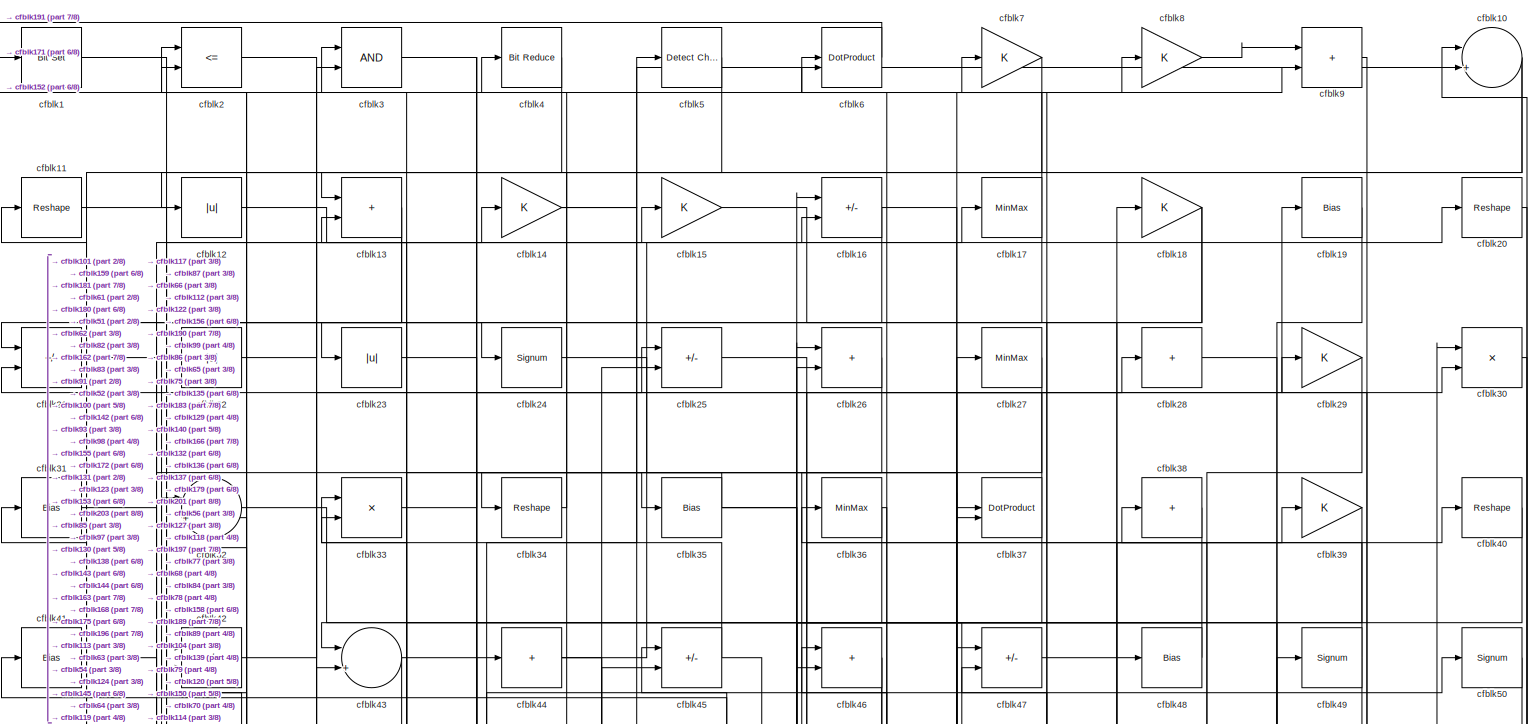
[diagram: root canvas - part 1/8, full width, top band]
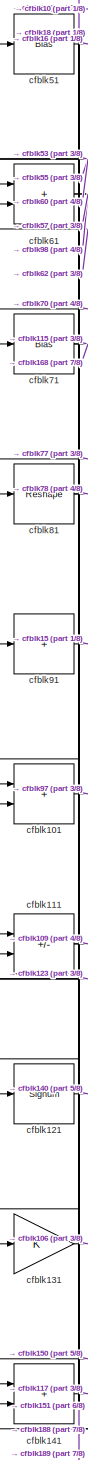
[diagram: root canvas - part 2/8, middle left region]
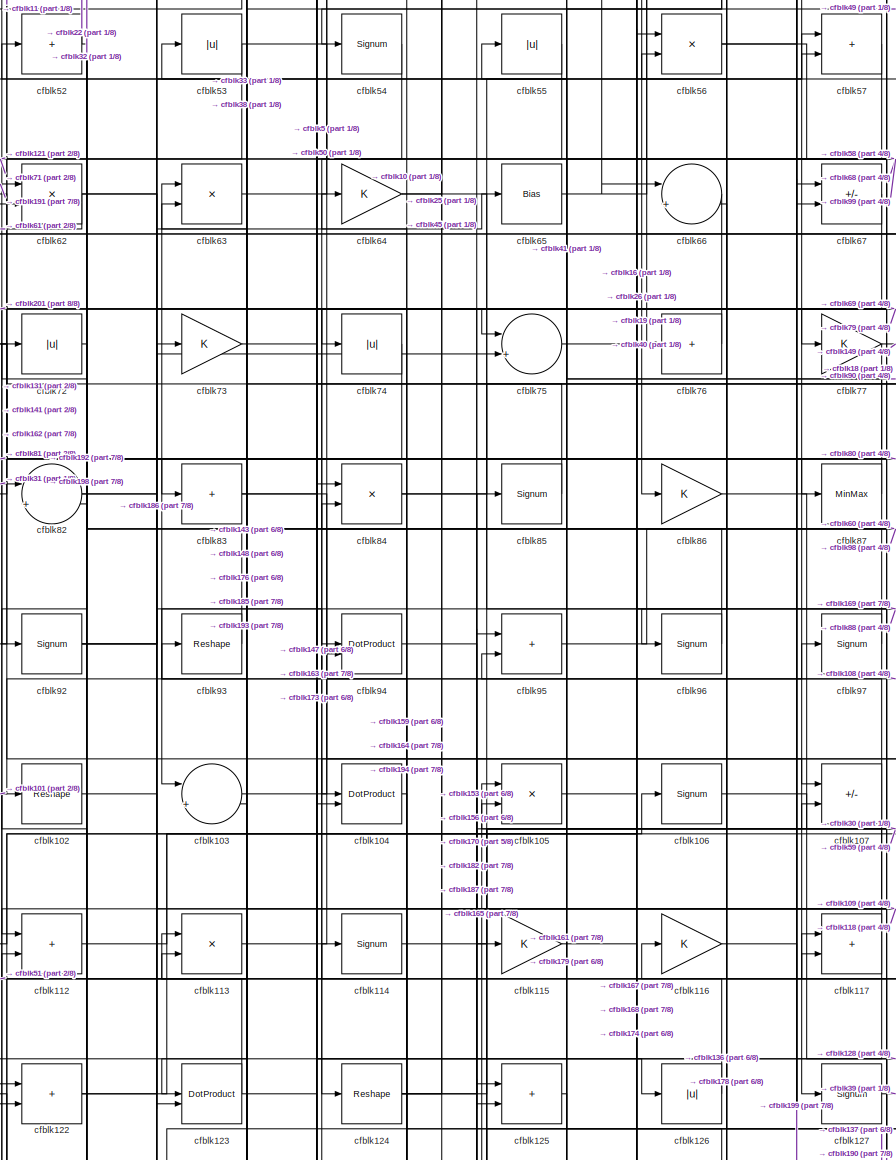
[diagram: root canvas - part 3/8, central region]
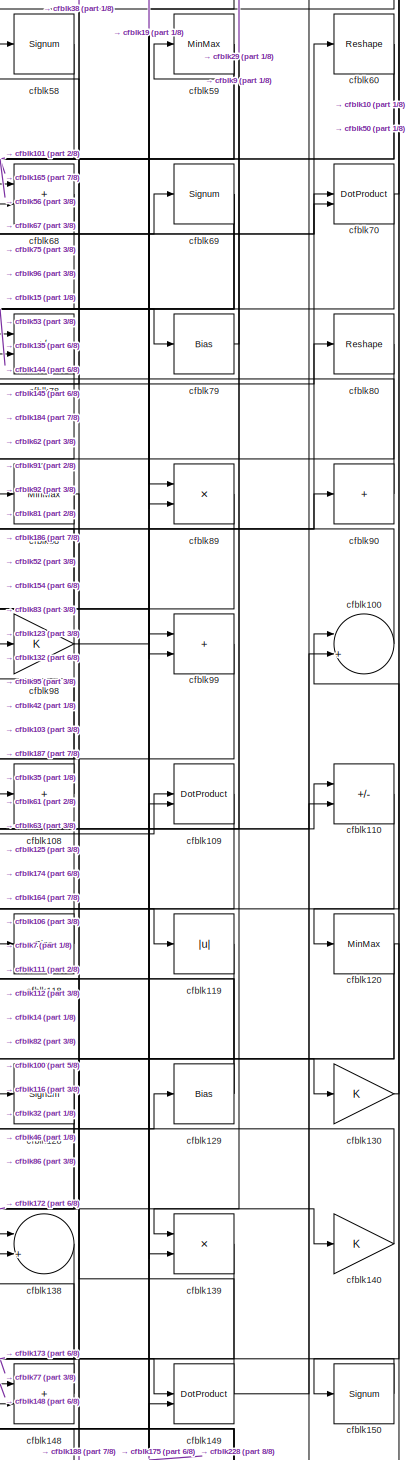
[diagram: root canvas - part 4/8, middle right region]
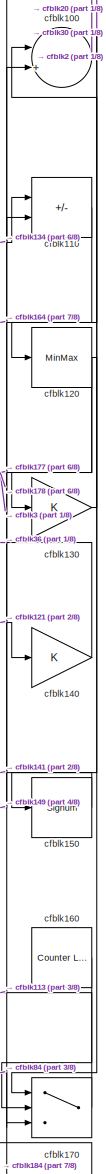
[diagram: root canvas - part 5/8, middle right region]
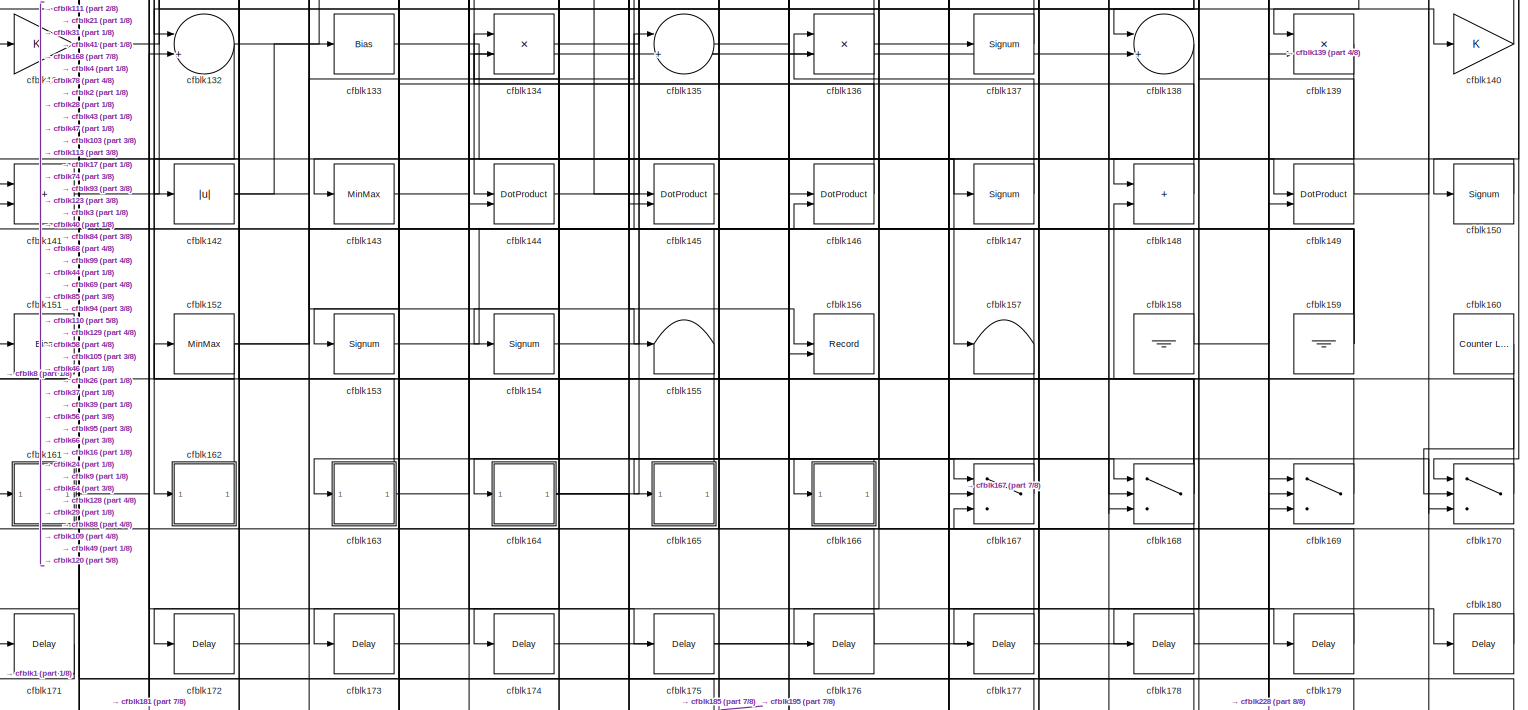
[diagram: root canvas - part 6/8, full width, bottom band]
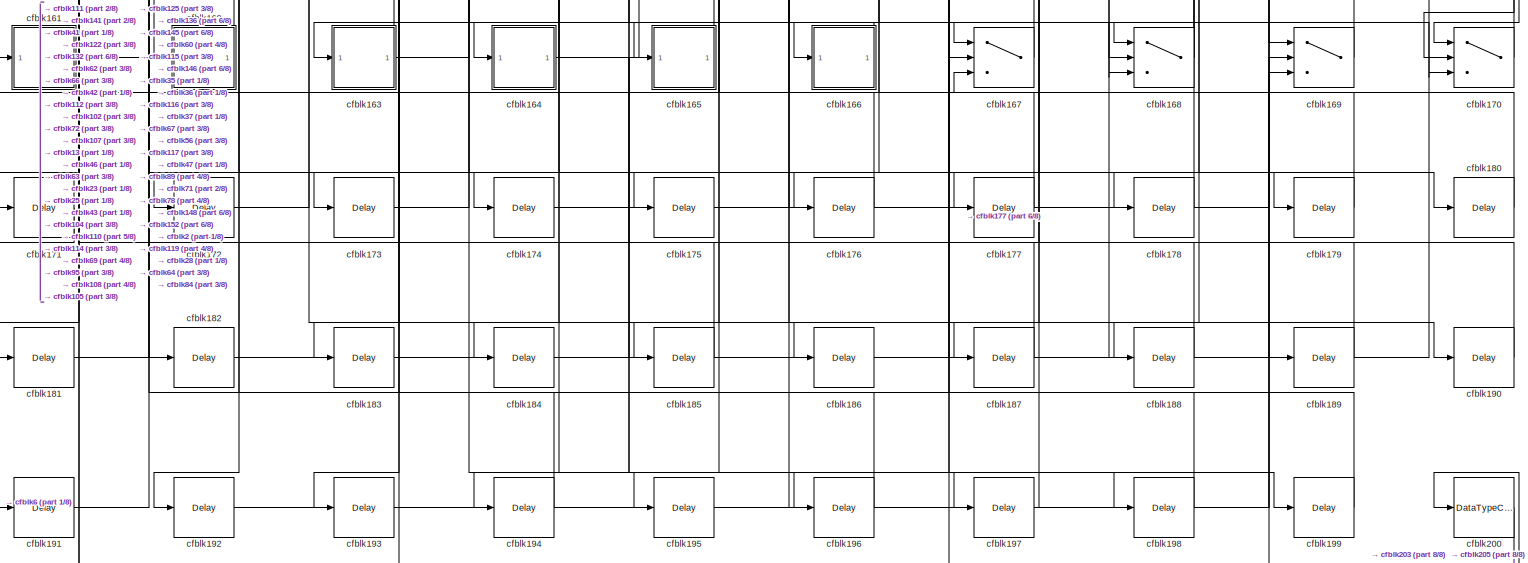
[diagram: root canvas - part 7/8, full width, bottom band]
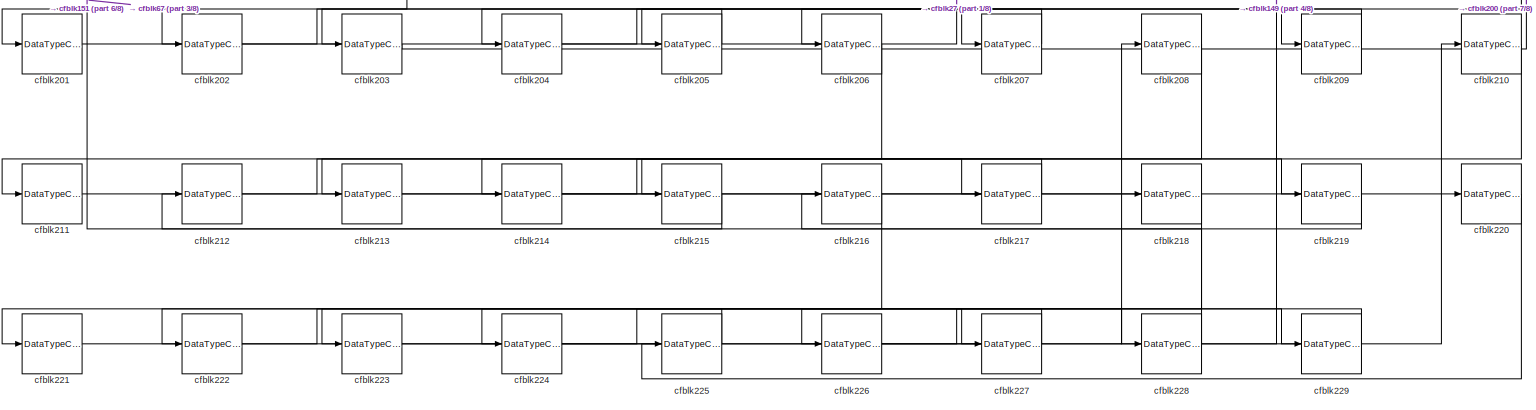
[diagram: root canvas - part 8/8, full width, bottom band]
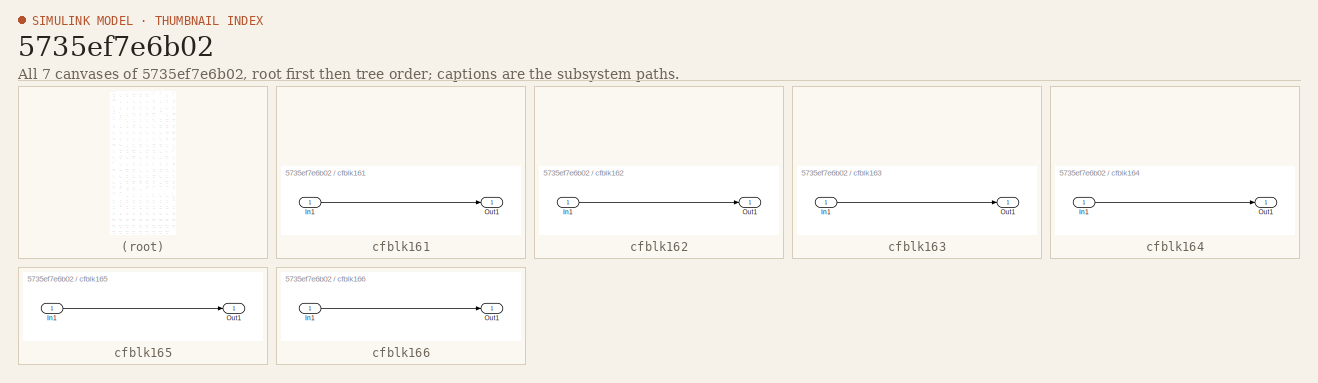
[diagram: thumbnail index - all 7 canvases of the model, root first then tree order]
MODEL slx_5735ef7e6b02
KIND model
CONFIG AbsTol = auto
CONFIG EnableMultiTasking = off
CONFIG FixedStep = auto
CONFIG MaxStep = auto
CONFIG MinStep = auto
CONFIG RelTol = 1e-3
CONFIG SampleTimeConstraint = Unconstrained
CONFIG SolverName = VariableStepAuto
CONFIG StartTime = 0.0
CONFIG StopTime = 10.0
BLOCK [Reference] cfblk1  REF=simulink/Logic and Bit
Operations/Bit Set
  LibrarySourceBlock = hdlsllib/Logic and Bit\nOperations/Bit Set
  SourceBlock = simulink/Logic and Bit\nOperations/Bit Set
  SourceType = Bit Set
BLOCK [Sum] cfblk10
  Inputs = |++
BLOCK [Sum] cfblk100
  Inputs = |++
BLOCK [Sum] cfblk101
  IconShape = rectangular
BLOCK [Reshape] cfblk102
BLOCK [Sum] cfblk103
  Inputs = |++
BLOCK [DotProduct] cfblk104
  OutDataTypeStr = Inherit: Inherit via internal rule
BLOCK [Product] cfblk105
  Inputs = */
  RndMeth = Zero
  SaturateOnIntegerOverflow = on
BLOCK [Signum] cfblk106
BLOCK [Sum] cfblk107
  IconShape = rectangular
  Inputs = +-
BLOCK [Sum] cfblk108
  IconShape = rectangular
  Inputs = +
BLOCK [DotProduct] cfblk109
  OutDataTypeStr = Inherit: Inherit via internal rule
BLOCK [Reshape] cfblk11
BLOCK [Sum] cfblk110
  IconShape = rectangular
  Inputs = +-
BLOCK [Sum] cfblk111
  IconShape = rectangular
  Inputs = +-
BLOCK [Sum] cfblk112
  IconShape = rectangular
BLOCK [Product] cfblk113
  Inputs = */
  RndMeth = Zero
  SaturateOnIntegerOverflow = on
BLOCK [Signum] cfblk114
BLOCK [Gain] cfblk115
BLOCK [Gain] cfblk116
BLOCK [Sum] cfblk117
  IconShape = rectangular
BLOCK [Bias] cfblk118
  Bias = 0.0
  SaturateOnIntegerOverflow = off
BLOCK [Abs] cfblk119
  SaturateOnIntegerOverflow = off
BLOCK [Abs] cfblk12
  SaturateOnIntegerOverflow = off
BLOCK [MinMax] cfblk120
BLOCK [Signum] cfblk121
BLOCK [Sum] cfblk122
  IconShape = rectangular
BLOCK [DotProduct] cfblk123
  OutDataTypeStr = Inherit: Inherit via internal rule
BLOCK [Reshape] cfblk124
BLOCK [Sum] cfblk125
  IconShape = rectangular
BLOCK [Abs] cfblk126
  SaturateOnIntegerOverflow = off
BLOCK [Signum] cfblk127
BLOCK [Signum] cfblk128
BLOCK [Bias] cfblk129
  Bias = 0.0
  SaturateOnIntegerOverflow = off
BLOCK [Sum] cfblk13
  IconShape = rectangular
BLOCK [Gain] cfblk130
BLOCK [Gain] cfblk131
BLOCK [Sum] cfblk132
  Inputs = |++
BLOCK [Bias] cfblk133
  Bias = 0.0
  SaturateOnIntegerOverflow = off
BLOCK [Product] cfblk134
  Inputs = */
  RndMeth = Zero
  SaturateOnIntegerOverflow = on
BLOCK [Sum] cfblk135
  Inputs = |++
BLOCK [Product] cfblk136
  Inputs = */
  RndMeth = Zero
  SaturateOnIntegerOverflow = on
BLOCK [Signum] cfblk137
BLOCK [Sum] cfblk138
  Inputs = |++
BLOCK [Product] cfblk139
  Inputs = */
  RndMeth = Zero
  SaturateOnIntegerOverflow = on
BLOCK [Gain] cfblk14
BLOCK [Gain] cfblk140
BLOCK [Sum] cfblk141
  IconShape = rectangular
BLOCK [Abs] cfblk142
  SaturateOnIntegerOverflow = off
BLOCK [MinMax] cfblk143
BLOCK [DotProduct] cfblk144
  OutDataTypeStr = Inherit: Inherit via internal rule
BLOCK [DotProduct] cfblk145
  OutDataTypeStr = Inherit: Inherit via internal rule
BLOCK [DotProduct] cfblk146
  OutDataTypeStr = Inherit: Inherit via internal rule
BLOCK [Signum] cfblk147
BLOCK [Sum] cfblk148
  IconShape = rectangular
BLOCK [DotProduct] cfblk149
  OutDataTypeStr = Inherit: Inherit via internal rule
BLOCK [Gain] cfblk15
BLOCK [Signum] cfblk150
BLOCK [Bias] cfblk151
  Bias = 0.0
  SaturateOnIntegerOverflow = off
BLOCK [MinMax] cfblk152
BLOCK [Signum] cfblk153
BLOCK [Signum] cfblk154
BLOCK [Terminator] cfblk155
BLOCK [Record] cfblk156
  CompatibilityTag = XY
  FileSettingsInternal = {"entries":[{"content":{"excelSettings":{"content":{},"type":"Streamout.ExcelSettings"}},"type":"Streamout.FileSettingStorage","uuid":""}],"packageUris":["http:\/\/schema.mathworks.com\/mf0\/streamout_blocks\/R2020a"],"version":"1.0"}
  Layout = [1 1]
  SignalsInternal = {"entries":[{"content":{"signals":[{"content":{"blockPath":[],"dimensions":[1],"domain":"","lineColor":"#a2142f","plots":[1],"port":1,"signalID":3459,"signalName":"XY Graph:1"},"type":"RecordBlkView.Signal","uuid":""},{"content":{"blockPath":[],"dimensions":[1],"domain":"","lineColor":"#139fff","plots":[1],"port":2,"signalID":3462,"signalName":"XY Graph:2"},"type":"RecordBlkView.Signal","uuid":""}...<+146ch>
  VisualizationBindings = {"xyplotplugin":{"info":[{"series":[{"bindingParametersList":[{"parameter":"X-Axis","signalID":3459,"signalName":"XY Graph:1"},{"parameter":"Y-Axis","signalID":3462,"signalName":"XY Graph:2"}],"seriesID":62333}],"subplotID":1}]}}
  st = -1
BLOCK [Terminator] cfblk157
BLOCK [Ground] cfblk158
BLOCK [Ground] cfblk159
BLOCK [Sum] cfblk16
  IconShape = rectangular
  Inputs = +-
BLOCK [Reference] cfblk160  REF=hdlsllib/Sources/Counter
Limited
  SourceBlock = hdlsllib/Sources/Counter\nLimited
  SourceType = Counter Limited
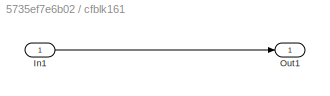
BLOCK [SubSystem] cfblk161
  LibrarySourceBlock = hdlsllib/Ports &\nSubsystems/Subsystem
BLOCK [Inport] cfblk161/In1
BLOCK [Outport] cfblk161/Out1
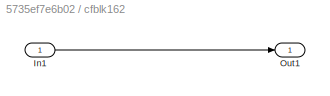
BLOCK [SubSystem] cfblk162
  LibrarySourceBlock = hdlsllib/Ports &\nSubsystems/Subsystem
BLOCK [Inport] cfblk162/In1
BLOCK [Outport] cfblk162/Out1
BLOCK [SubSystem] cfblk163
  LibrarySourceBlock = hdlsllib/Ports &\nSubsystems/Subsystem
BLOCK [Inport] cfblk163/In1
BLOCK [Outport] cfblk163/Out1
BLOCK [SubSystem] cfblk164
  LibrarySourceBlock = hdlsllib/Ports &\nSubsystems/Subsystem
BLOCK [Inport] cfblk164/In1
BLOCK [Outport] cfblk164/Out1
BLOCK [SubSystem] cfblk165
  LibrarySourceBlock = hdlsllib/Ports &\nSubsystems/Subsystem
BLOCK [Inport] cfblk165/In1
BLOCK [Outport] cfblk165/Out1
BLOCK [SubSystem] cfblk166
  LibrarySourceBlock = hdlsllib/Ports &\nSubsystems/Subsystem
BLOCK [Inport] cfblk166/In1
BLOCK [Outport] cfblk166/Out1
BLOCK [Switch] cfblk167
  InputSameDT = off
  SaturateOnIntegerOverflow = off
BLOCK [Switch] cfblk168
  InputSameDT = off
  SaturateOnIntegerOverflow = off
BLOCK [Switch] cfblk169
  InputSameDT = off
  SaturateOnIntegerOverflow = off
BLOCK [MinMax] cfblk17
BLOCK [Switch] cfblk170
  InputSameDT = off
  SaturateOnIntegerOverflow = off
BLOCK [Delay] cfblk171
  InputPortMap = u0
  SampleTime = 1
BLOCK [Delay] cfblk172
  InputPortMap = u0
  SampleTime = 1
BLOCK [Delay] cfblk173
  InputPortMap = u0
  SampleTime = 1
BLOCK [Delay] cfblk174
  InputPortMap = u0
  SampleTime = 1
BLOCK [Delay] cfblk175
  InputPortMap = u0
  SampleTime = 1
BLOCK [Delay] cfblk176
  InputPortMap = u0
  SampleTime = 1
BLOCK [Delay] cfblk177
  InputPortMap = u0
  SampleTime = 1
BLOCK [Delay] cfblk178
  InputPortMap = u0
  SampleTime = 1
BLOCK [Delay] cfblk179
  InputPortMap = u0
  SampleTime = 1
BLOCK [Gain] cfblk18
BLOCK [Delay] cfblk180
  InputPortMap = u0
  SampleTime = 1
BLOCK [Delay] cfblk181
  InputPortMap = u0
  SampleTime = 1
BLOCK [Delay] cfblk182
  InputPortMap = u0
  SampleTime = 1
BLOCK [Delay] cfblk183
  InputPortMap = u0
  SampleTime = 1
BLOCK [Delay] cfblk184
  InputPortMap = u0
  SampleTime = 1
BLOCK [Delay] cfblk185
  InputPortMap = u0
  SampleTime = 1
BLOCK [Delay] cfblk186
  InputPortMap = u0
  SampleTime = 1
BLOCK [Delay] cfblk187
  InputPortMap = u0
  SampleTime = 1
BLOCK [Delay] cfblk188
  InputPortMap = u0
  SampleTime = 1
BLOCK [Delay] cfblk189
  InputPortMap = u0
  SampleTime = 1
BLOCK [Bias] cfblk19
  Bias = 0.0
  SaturateOnIntegerOverflow = off
BLOCK [Delay] cfblk190
  InputPortMap = u0
  SampleTime = 1
BLOCK [Delay] cfblk191
  InputPortMap = u0
  SampleTime = 1
BLOCK [Delay] cfblk192
  InputPortMap = u0
  SampleTime = 1
BLOCK [Delay] cfblk193
  InputPortMap = u0
  SampleTime = 1
BLOCK [Delay] cfblk194
  InputPortMap = u0
  SampleTime = 1
BLOCK [Delay] cfblk195
  InputPortMap = u0
  SampleTime = 1
BLOCK [Delay] cfblk196
  InputPortMap = u0
  SampleTime = 1
BLOCK [Delay] cfblk197
  InputPortMap = u0
  SampleTime = 1
BLOCK [Delay] cfblk198
  InputPortMap = u0
  SampleTime = 1
BLOCK [Delay] cfblk199
  InputPortMap = u0
  SampleTime = 1
BLOCK [RelationalOperator] cfblk2
  InputSameDT = off
  Operator = <=
  OutDataTypeStr = boolean
BLOCK [Reshape] cfblk20
BLOCK [DataTypeConversion] cfblk200
  RndMeth = Floor
  SaturateOnIntegerOverflow = off
BLOCK [DataTypeConversion] cfblk201
  OutDataTypeStr = uint8
  RndMeth = Floor
  SaturateOnIntegerOverflow = off
BLOCK [DataTypeConversion] cfblk202
  RndMeth = Floor
  SaturateOnIntegerOverflow = off
BLOCK [DataTypeConversion] cfblk203
  OutDataTypeStr = uint8
  RndMeth = Floor
  SaturateOnIntegerOverflow = off
BLOCK [DataTypeConversion] cfblk204
  RndMeth = Floor
  SaturateOnIntegerOverflow = off
BLOCK [DataTypeConversion] cfblk205
  OutDataTypeStr = uint8
  RndMeth = Floor
  SaturateOnIntegerOverflow = off
BLOCK [DataTypeConversion] cfblk206
  RndMeth = Floor
  SaturateOnIntegerOverflow = off
BLOCK [DataTypeConversion] cfblk207
  OutDataTypeStr = uint8
  RndMeth = Floor
  SaturateOnIntegerOverflow = off
BLOCK [DataTypeConversion] cfblk208
  RndMeth = Floor
  SaturateOnIntegerOverflow = off
BLOCK [DataTypeConversion] cfblk209
  OutDataTypeStr = uint8
  RndMeth = Floor
  SaturateOnIntegerOverflow = off
BLOCK [Sum] cfblk21
  IconShape = rectangular
  Inputs = +-
BLOCK [DataTypeConversion] cfblk210
  RndMeth = Floor
  SaturateOnIntegerOverflow = off
BLOCK [DataTypeConversion] cfblk211
  OutDataTypeStr = uint8
  RndMeth = Floor
  SaturateOnIntegerOverflow = off
BLOCK [DataTypeConversion] cfblk212
  RndMeth = Floor
  SaturateOnIntegerOverflow = off
BLOCK [DataTypeConversion] cfblk213
  OutDataTypeStr = uint8
  RndMeth = Floor
  SaturateOnIntegerOverflow = off
BLOCK [DataTypeConversion] cfblk214
  RndMeth = Floor
  SaturateOnIntegerOverflow = off
BLOCK [DataTypeConversion] cfblk215
  OutDataTypeStr = uint8
  RndMeth = Floor
  SaturateOnIntegerOverflow = off
BLOCK [DataTypeConversion] cfblk216
  RndMeth = Floor
  SaturateOnIntegerOverflow = off
BLOCK [DataTypeConversion] cfblk217
  OutDataTypeStr = uint8
  RndMeth = Floor
  SaturateOnIntegerOverflow = off
BLOCK [DataTypeConversion] cfblk218
  RndMeth = Floor
  SaturateOnIntegerOverflow = off
BLOCK [DataTypeConversion] cfblk219
  OutDataTypeStr = uint8
  RndMeth = Floor
  SaturateOnIntegerOverflow = off
BLOCK [Abs] cfblk22
  SaturateOnIntegerOverflow = off
BLOCK [DataTypeConversion] cfblk220
  RndMeth = Floor
  SaturateOnIntegerOverflow = off
BLOCK [DataTypeConversion] cfblk221
  OutDataTypeStr = uint8
  RndMeth = Floor
  SaturateOnIntegerOverflow = off
BLOCK [DataTypeConversion] cfblk222
  RndMeth = Floor
  SaturateOnIntegerOverflow = off
BLOCK [DataTypeConversion] cfblk223
  OutDataTypeStr = uint8
  RndMeth = Floor
  SaturateOnIntegerOverflow = off
BLOCK [DataTypeConversion] cfblk224
  RndMeth = Floor
  SaturateOnIntegerOverflow = off
BLOCK [DataTypeConversion] cfblk225
  OutDataTypeStr = uint8
  RndMeth = Floor
  SaturateOnIntegerOverflow = off
BLOCK [DataTypeConversion] cfblk226
  RndMeth = Floor
  SaturateOnIntegerOverflow = off
BLOCK [DataTypeConversion] cfblk227
  OutDataTypeStr = uint8
  RndMeth = Floor
  SaturateOnIntegerOverflow = off
BLOCK [DataTypeConversion] cfblk228
  RndMeth = Floor
  SaturateOnIntegerOverflow = off
BLOCK [DataTypeConversion] cfblk229
  OutDataTypeStr = uint8
  RndMeth = Floor
  SaturateOnIntegerOverflow = off
BLOCK [Abs] cfblk23
  SaturateOnIntegerOverflow = off
BLOCK [Signum] cfblk24
BLOCK [Sum] cfblk25
  IconShape = rectangular
  Inputs = +-
BLOCK [Sum] cfblk26
  IconShape = rectangular
BLOCK [MinMax] cfblk27
BLOCK [Sum] cfblk28
  IconShape = rectangular
  Inputs = +
BLOCK [Gain] cfblk29
BLOCK [Logic] cfblk3
  AllPortsSameDT = off
  OutDataTypeStr = boolean
BLOCK [Product] cfblk30
  Inputs = */
  RndMeth = Zero
  SaturateOnIntegerOverflow = on
BLOCK [Bias] cfblk31
  Bias = 0.0
  SaturateOnIntegerOverflow = off
BLOCK [Sum] cfblk32
  Inputs = |++
BLOCK [Product] cfblk33
  Inputs = */
  RndMeth = Zero
  SaturateOnIntegerOverflow = on
BLOCK [Reshape] cfblk34
BLOCK [Bias] cfblk35
  Bias = 0.0
  SaturateOnIntegerOverflow = off
BLOCK [MinMax] cfblk36
BLOCK [DotProduct] cfblk37
  OutDataTypeStr = Inherit: Inherit via internal rule
BLOCK [Sum] cfblk38
  IconShape = rectangular
  Inputs = +
BLOCK [Gain] cfblk39
BLOCK [Reference] cfblk4  REF=hdlsllib/Logic and Bit
Operations/Bit Reduce
  SourceBlock = hdlsllib/Logic and Bit\nOperations/Bit Reduce
  SourceType = Bit Reduce
BLOCK [Reshape] cfblk40
BLOCK [Bias] cfblk41
  Bias = 0.0
  SaturateOnIntegerOverflow = off
BLOCK [Sum] cfblk42
  IconShape = rectangular
  Inputs = +-
BLOCK [Sum] cfblk43
  Inputs = |++
BLOCK [Sum] cfblk44
  IconShape = rectangular
  Inputs = +
BLOCK [Sum] cfblk45
  IconShape = rectangular
  Inputs = +-
BLOCK [Sum] cfblk46
  IconShape = rectangular
BLOCK [Sum] cfblk47
  IconShape = rectangular
  Inputs = +-
BLOCK [Bias] cfblk48
  Bias = 0.0
  SaturateOnIntegerOverflow = off
BLOCK [Signum] cfblk49
BLOCK [Reference] cfblk5  REF=simulink/Logic and Bit
Operations/Detect
Change
  LibrarySourceBlock = hdlsllib/Logic and Bit\nOperations/Detect\nChange
  SourceBlock = simulink/Logic and Bit\nOperations/Detect\nChange
  SourceType = Detect Change
BLOCK [Signum] cfblk50
BLOCK [Bias] cfblk51
  Bias = 0.0
  SaturateOnIntegerOverflow = off
BLOCK [Sum] cfblk52
  IconShape = rectangular
  Inputs = +
BLOCK [Abs] cfblk53
  SaturateOnIntegerOverflow = off
BLOCK [Signum] cfblk54
BLOCK [Abs] cfblk55
  SaturateOnIntegerOverflow = off
BLOCK [Product] cfblk56
  Inputs = */
  RndMeth = Zero
  SaturateOnIntegerOverflow = on
BLOCK [Sum] cfblk57
  IconShape = rectangular
BLOCK [Signum] cfblk58
BLOCK [MinMax] cfblk59
BLOCK [DotProduct] cfblk6
  OutDataTypeStr = Inherit: Inherit via internal rule
BLOCK [Reshape] cfblk60
BLOCK [Sum] cfblk61
  IconShape = rectangular
BLOCK [Product] cfblk62
  Inputs = */
  RndMeth = Zero
  SaturateOnIntegerOverflow = on
BLOCK [Product] cfblk63
  Inputs = */
  RndMeth = Zero
  SaturateOnIntegerOverflow = on
BLOCK [Gain] cfblk64
BLOCK [Bias] cfblk65
  Bias = 0.0
  SaturateOnIntegerOverflow = off
BLOCK [Sum] cfblk66
  Inputs = |++
BLOCK [Sum] cfblk67
  IconShape = rectangular
  Inputs = +-
BLOCK [Sum] cfblk68
  IconShape = rectangular
BLOCK [Signum] cfblk69
BLOCK [Gain] cfblk7
BLOCK [DotProduct] cfblk70
  OutDataTypeStr = Inherit: Inherit via internal rule
BLOCK [Bias] cfblk71
  Bias = 0.0
  SaturateOnIntegerOverflow = off
BLOCK [Abs] cfblk72
  SaturateOnIntegerOverflow = off
BLOCK [Gain] cfblk73
BLOCK [Abs] cfblk74
  SaturateOnIntegerOverflow = off
BLOCK [Sum] cfblk75
  Inputs = |++
BLOCK [Sum] cfblk76
  IconShape = rectangular
  Inputs = +
BLOCK [Gain] cfblk77
BLOCK [Sum] cfblk78
  IconShape = rectangular
  Inputs = +-
BLOCK [Bias] cfblk79
  Bias = 0.0
  SaturateOnIntegerOverflow = off
BLOCK [Gain] cfblk8
BLOCK [Reshape] cfblk80
BLOCK [Reshape] cfblk81
BLOCK [Sum] cfblk82
  Inputs = |++
BLOCK [Sum] cfblk83
  IconShape = rectangular
  Inputs = +
BLOCK [Product] cfblk84
  Inputs = */
  RndMeth = Zero
  SaturateOnIntegerOverflow = on
BLOCK [Signum] cfblk85
BLOCK [Gain] cfblk86
BLOCK [MinMax] cfblk87
BLOCK [MinMax] cfblk88
BLOCK [Product] cfblk89
  Inputs = */
  RndMeth = Zero
  SaturateOnIntegerOverflow = on
BLOCK [Sum] cfblk9
  IconShape = rectangular
BLOCK [Sum] cfblk90
  IconShape = rectangular
  Inputs = +
BLOCK [Sum] cfblk91
  IconShape = rectangular
  Inputs = +
BLOCK [Signum] cfblk92
BLOCK [Reshape] cfblk93
BLOCK [DotProduct] cfblk94
  OutDataTypeStr = Inherit: Inherit via internal rule
BLOCK [Sum] cfblk95
  IconShape = rectangular
BLOCK [Signum] cfblk96
BLOCK [Signum] cfblk97
BLOCK [Gain] cfblk98
BLOCK [Sum] cfblk99
  IconShape = rectangular
LINE cfblk100:1 -> cfblk2:1
LINE cfblk101:1 -> cfblk97:1
LINE cfblk102:1 -> cfblk186:1
LINE cfblk103:1 -> cfblk60:1
LINE cfblk104:1 -> cfblk194:1
LINE cfblk105:1 -> cfblk167:1
LINE cfblk106:1 -> cfblk59:1
NET cfblk107:1 -> cfblk193:1, cfblk55:1
LINE cfblk108:1 -> cfblk63:1
LINE cfblk109:1 -> cfblk112:1
NET cfblk10:1 -> cfblk101:1, cfblk54:1
LINE cfblk110:1 -> cfblk164:1
NET cfblk111:1 -> cfblk109:1, cfblk70:2
LINE cfblk112:1 -> cfblk26:2
LINE cfblk113:1 -> cfblk50:1
LINE cfblk114:1 -> cfblk30:1
LINE cfblk115:1 -> cfblk168:1
LINE cfblk116:1 -> cfblk199:1
NET cfblk117:1 -> cfblk122:2, cfblk45:1
LINE cfblk118:1 -> cfblk7:1
LINE cfblk119:1 -> cfblk188:1
LINE cfblk11:1 -> cfblk83:1
NET cfblk120:1 -> cfblk170:1, cfblk177:1, cfblk178:1
LINE cfblk121:1 -> cfblk140:1
NET cfblk122:1 -> cfblk16:1, cfblk57:1
NET cfblk123:1 -> cfblk147:1, cfblk51:1
NET cfblk124:1 -> cfblk107:2, cfblk25:2, cfblk76:1
LINE cfblk125:1 -> cfblk161:1
LINE cfblk126:1 -> cfblk102:1
LINE cfblk127:1 -> cfblk39:1
NET cfblk128:1 -> cfblk154:1, cfblk172:1
NET cfblk129:1 -> cfblk32:2, cfblk46:1
LINE cfblk12:1 -> cfblk14:1
LINE cfblk130:1 -> cfblk100:1
LINE cfblk131:1 -> cfblk106:1
NET cfblk132:1 -> cfblk171:1, cfblk47:1
LINE cfblk133:1 -> cfblk157:1
LINE cfblk134:1 -> cfblk110:1
LINE cfblk135:1 -> cfblk69:1
NET cfblk136:1 -> cfblk195:1, cfblk95:2, cfblk9:2
LINE cfblk137:1 -> cfblk64:1
LINE cfblk138:1 -> cfblk176:1
LINE cfblk139:1 -> cfblk173:1
NET cfblk13:1 -> cfblk21:1, cfblk23:1
LINE cfblk140:1 -> cfblk36:1
LINE cfblk141:1 -> cfblk117:1
NET cfblk142:1 -> cfblk133:1, cfblk28:1
LINE cfblk143:1 -> cfblk44:1
LINE cfblk144:1 -> cfblk129:1
LINE cfblk145:1 -> cfblk185:1
LINE cfblk146:1 -> cfblk134:1
LINE cfblk147:1 -> cfblk136:1
LINE cfblk148:1 -> cfblk93:1
NET cfblk149:1 -> cfblk100:2, cfblk116:1
NET cfblk14:1 -> cfblk10:2, cfblk119:1
LINE cfblk150:1 -> cfblk141:1
LINE cfblk151:1 -> cfblk111:1
NET cfblk152:1 -> cfblk135:1, cfblk146:2, cfblk8:1
LINE cfblk153:1 -> cfblk85:1
LINE cfblk154:1 -> cfblk58:1
NET cfblk158:1 -> cfblk21:2, cfblk49:1
NET cfblk159:1 -> cfblk113:2, cfblk134:2, cfblk31:1, cfblk94:2
LINE cfblk15:1 -> cfblk68:1
LINE cfblk160:1 -> cfblk170:2
LINE cfblk161/In1:1 -> cfblk161/Out1:1
LINE cfblk161:1 -> cfblk182:1
LINE cfblk162/In1:1 -> cfblk162/Out1:1
LINE cfblk162:1 -> cfblk42:1
LINE cfblk163/In1:1 -> cfblk163/Out1:1
NET cfblk163:1 -> cfblk25:1, cfblk72:1
LINE cfblk164/In1:1 -> cfblk164/Out1:1
NET cfblk164:1 -> cfblk108:1, cfblk114:1, cfblk197:1, cfblk198:1
LINE cfblk165/In1:1 -> cfblk165/Out1:1
LINE cfblk165:1 -> cfblk105:1
LINE cfblk166/In1:1 -> cfblk166/Out1:1
LINE cfblk166:1 -> cfblk163:1
LINE cfblk167:1 -> cfblk56:2
NET cfblk168:1 -> cfblk148:2, cfblk152:1, cfblk167:3, cfblk2:2
LINE cfblk169:1 -> cfblk84:2
NET cfblk16:1 -> cfblk179:1, cfblk62:2
LINE cfblk170:1 -> cfblk113:1
LINE cfblk171:1 -> cfblk1:1
LINE cfblk172:1 -> cfblk43:2
LINE cfblk173:1 -> cfblk84:1
LINE cfblk174:1 -> cfblk56:1
LINE cfblk175:1 -> cfblk109:2
LINE cfblk176:1 -> cfblk103:2
LINE cfblk177:1 -> cfblk167:2
LINE cfblk178:1 -> cfblk66:2
LINE cfblk179:1 -> cfblk105:2
NET cfblk17:1 -> cfblk153:1, cfblk6:2
LINE cfblk180:1 -> cfblk26:1
LINE cfblk181:1 -> cfblk132:2
LINE cfblk182:1 -> cfblk125:1
LINE cfblk183:1 -> cfblk37:1
LINE cfblk184:1 -> cfblk110:2
LINE cfblk185:1 -> cfblk63:2
LINE cfblk186:1 -> cfblk78:2
LINE cfblk187:1 -> cfblk95:1
LINE cfblk188:1 -> cfblk141:2
LINE cfblk189:1 -> cfblk111:2
NET cfblk18:1 -> cfblk61:1, cfblk77:1
LINE cfblk190:1 -> cfblk117:2
LINE cfblk191:1 -> cfblk62:1
LINE cfblk192:1 -> cfblk169:2
LINE cfblk193:1 -> cfblk169:3
LINE cfblk194:1 -> cfblk122:1
LINE cfblk195:1 -> cfblk146:1
LINE cfblk196:1 -> cfblk13:2
LINE cfblk197:1 -> cfblk47:2
LINE cfblk198:1 -> cfblk112:2
LINE cfblk199:1 -> cfblk67:1
LINE cfblk19:1 -> cfblk89:2
LINE cfblk1:1 -> cfblk24:1
LINE cfblk200:1 -> cfblk205:1
LINE cfblk201:1 -> cfblk27:1
LINE cfblk202:1 -> cfblk207:1
LINE cfblk203:1 -> cfblk200:1
LINE cfblk204:1 -> cfblk209:1
LINE cfblk205:1 -> cfblk202:1
LINE cfblk206:1 -> cfblk211:1
LINE cfblk207:1 -> cfblk204:1
LINE cfblk208:1 -> cfblk213:1
LINE cfblk209:1 -> cfblk206:1
LINE cfblk20:1 -> cfblk120:1
LINE cfblk210:1 -> cfblk215:1
LINE cfblk211:1 -> cfblk208:1
LINE cfblk212:1 -> cfblk217:1
LINE cfblk213:1 -> cfblk210:1
LINE cfblk214:1 -> cfblk219:1
LINE cfblk215:1 -> cfblk212:1
LINE cfblk216:1 -> cfblk221:1
LINE cfblk217:1 -> cfblk214:1
LINE cfblk218:1 -> cfblk223:1
LINE cfblk219:1 -> cfblk216:1
LINE cfblk21:1 -> cfblk37:2
LINE cfblk220:1 -> cfblk225:1
LINE cfblk221:1 -> cfblk218:1
LINE cfblk222:1 -> cfblk227:1
LINE cfblk223:1 -> cfblk220:1
LINE cfblk224:1 -> cfblk229:1
LINE cfblk225:1 -> cfblk222:1
LINE cfblk226:1 -> cfblk228:1
LINE cfblk227:1 -> cfblk224:1
NET cfblk228:1 -> cfblk149:2, cfblk151:1
LINE cfblk229:1 -> cfblk226:1
LINE cfblk22:1 -> cfblk3:2
LINE cfblk23:1 -> cfblk196:1
LINE cfblk24:1 -> cfblk137:1
LINE cfblk25:1 -> cfblk127:1
LINE cfblk26:1 -> cfblk86:1
LINE cfblk27:1 -> cfblk203:1
LINE cfblk28:1 -> cfblk189:1
LINE cfblk29:1 -> cfblk138:1
LINE cfblk2:1 -> cfblk155:1
LINE cfblk30:1 -> cfblk150:1
LINE cfblk31:1 -> cfblk82:1
LINE cfblk32:1 -> cfblk89:1
LINE cfblk33:1 -> cfblk35:1
LINE cfblk34:1 -> cfblk4:1
NET cfblk35:1 -> cfblk190:1, cfblk34:1, cfblk99:2
NET cfblk36:1 -> cfblk166:1, cfblk46:2
NET cfblk37:1 -> cfblk11:1, cfblk136:2
LINE cfblk38:1 -> cfblk123:1
LINE cfblk39:1 -> cfblk156:2
NET cfblk3:1 -> cfblk130:1, cfblk138:2, cfblk175:1
LINE cfblk40:1 -> cfblk144:2
NET cfblk41:1 -> cfblk180:1, cfblk181:1
LINE cfblk42:1 -> cfblk20:1
NET cfblk43:1 -> cfblk131:1, cfblk168:2
NET cfblk44:1 -> cfblk145:1, cfblk17:1
NET cfblk45:1 -> cfblk3:1, cfblk66:1
NET cfblk46:1 -> cfblk135:2, cfblk183:1
LINE cfblk47:1 -> cfblk48:1
LINE cfblk48:1 -> cfblk43:1
NET cfblk49:1 -> cfblk104:1, cfblk6:1
LINE cfblk4:1 -> cfblk142:1
LINE cfblk50:1 -> cfblk139:2
LINE cfblk51:1 -> cfblk16:2
NET cfblk52:1 -> cfblk22:1, cfblk82:2
NET cfblk53:1 -> cfblk68:2, cfblk71:1
LINE cfblk54:1 -> cfblk124:1
LINE cfblk55:1 -> cfblk121:1
NET cfblk56:1 -> cfblk30:2, cfblk99:1
LINE cfblk57:1 -> cfblk104:2
LINE cfblk58:1 -> cfblk96:1
NET cfblk59:1 -> cfblk67:2, cfblk75:1
LINE cfblk5:1 -> cfblk13:1
NET cfblk60:1 -> cfblk101:2, cfblk165:1
NET cfblk61:1 -> cfblk57:2, cfblk98:1
NET cfblk62:1 -> cfblk61:2, cfblk79:1, cfblk87:1
LINE cfblk63:1 -> cfblk5:1
NET cfblk64:1 -> cfblk169:1, cfblk45:2
LINE cfblk65:1 -> cfblk40:1
LINE cfblk66:1 -> cfblk162:1
LINE cfblk67:1 -> cfblk201:1
LINE cfblk68:1 -> cfblk144:1
NET cfblk69:1 -> cfblk145:2, cfblk184:1, cfblk92:1
LINE cfblk6:1 -> cfblk191:1
NET cfblk70:1 -> cfblk10:1, cfblk91:1
NET cfblk71:1 -> cfblk115:1, cfblk168:3
LINE cfblk72:1 -> cfblk192:1
LINE cfblk73:1 -> cfblk126:1
LINE cfblk74:1 -> cfblk143:1
LINE cfblk75:1 -> cfblk19:1
LINE cfblk76:1 -> cfblk74:1
NET cfblk77:1 -> cfblk149:1, cfblk81:1
NET cfblk78:1 -> cfblk132:1, cfblk38:1
LINE cfblk79:1 -> cfblk29:1
LINE cfblk7:1 -> cfblk12:1
LINE cfblk80:1 -> cfblk123:2
NET cfblk81:1 -> cfblk70:1, cfblk78:1
NET cfblk82:1 -> cfblk118:1, cfblk65:1
NET cfblk83:1 -> cfblk107:1, cfblk80:1
NET cfblk84:1 -> cfblk170:3, cfblk18:1
LINE cfblk85:1 -> cfblk33:1
LINE cfblk86:1 -> cfblk128:1
LINE cfblk87:1 -> cfblk41:1
NET cfblk88:1 -> cfblk103:1, cfblk148:1
LINE cfblk89:1 -> cfblk187:1
LINE cfblk8:1 -> cfblk9:1
LINE cfblk90:1 -> cfblk52:1
LINE cfblk91:1 -> cfblk15:1
NET cfblk92:1 -> cfblk73:1, cfblk75:2, cfblk94:1
LINE cfblk93:1 -> cfblk32:1
LINE cfblk94:1 -> cfblk156:1
LINE cfblk95:1 -> cfblk88:1
LINE cfblk96:1 -> cfblk53:1
LINE cfblk97:1 -> cfblk33:2
NET cfblk98:1 -> cfblk125:2, cfblk42:2, cfblk90:1
LINE cfblk99:1 -> cfblk174:1
LINE cfblk9:1 -> cfblk139:1
note: NET lines group one-source signal fan-out (src -> all destinations, sorted); 1:1 wires keep LINE
